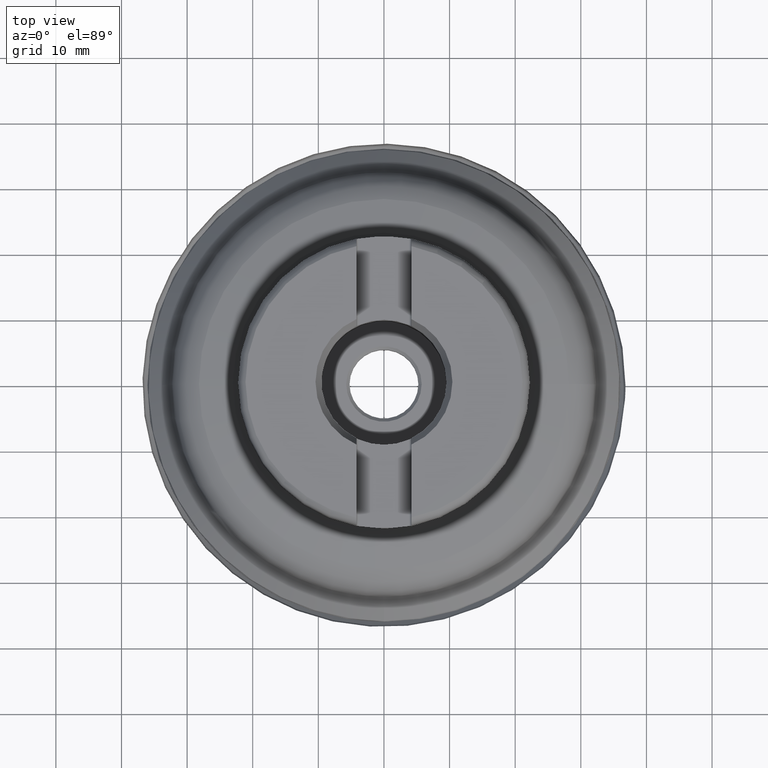
[diagram: clean part render]
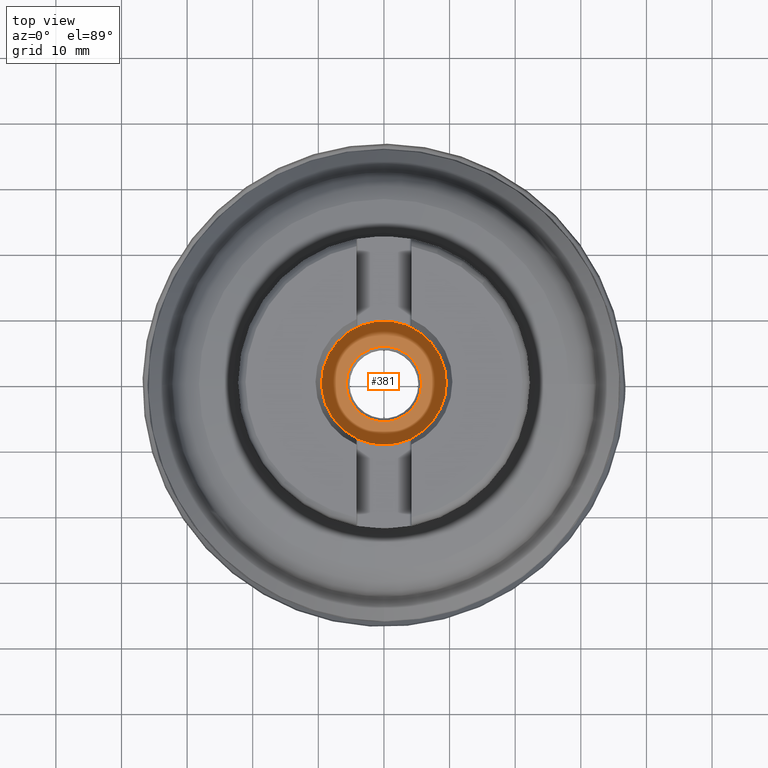
[diagram: same view with one face highlighted and labeled with its STEP entity id]
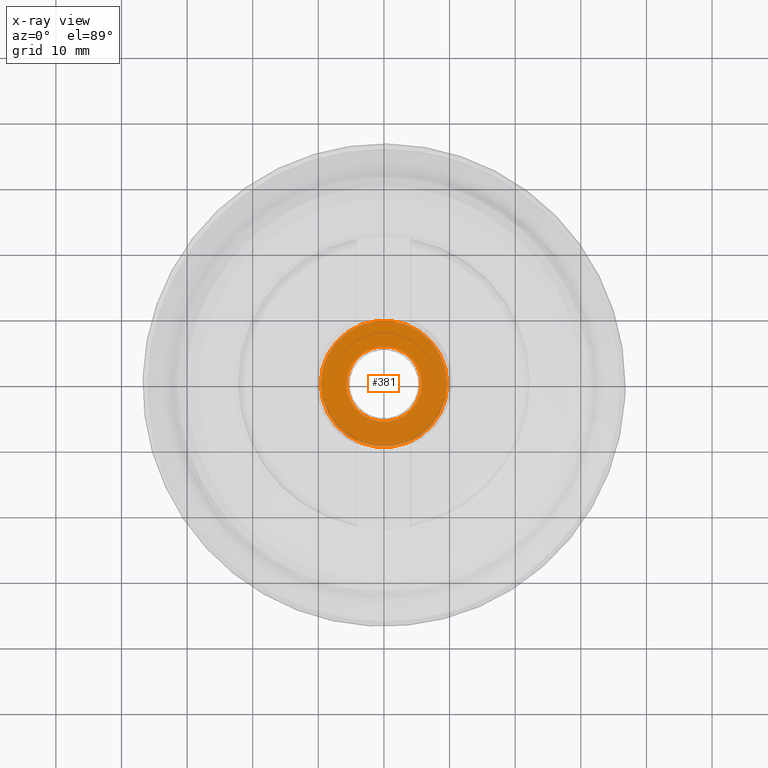
[diagram: x-ray of the same camera — body ghosted, the highlighted face saturated]
A machine part, top view. The second image highlights one B-rep face of the part: STEP entity #381.
The next image is the same camera in x-ray: the body ghosted, the highlighted face saturated — about 5% of this face is hidden behind the body in this view.
In plain terms, the highlighted planar face has unit normal (-0, -0, -1).
Its self-contained STEP definition (entity closure, byte-faithful):
#214=FACE_BOUND('',#492,.T.);
#215=FACE_BOUND('',#493,.T.);
#289=PLANE('',#1083);
#381=ADVANCED_FACE('',(#214,#215),#289,.F.);
#492=EDGE_LOOP('',(#731));
#493=EDGE_LOOP('',(#732));
#587=CIRCLE('',#1081,9.625);
#588=CIRCLE('',#1082,5.7451);
#731=ORIENTED_EDGE('',*,*,#955,.T.);
#732=ORIENTED_EDGE('',*,*,#956,.T.);
#859=VERTEX_POINT('',#1985);
#860=VERTEX_POINT('',#1987);
#955=EDGE_CURVE('',#859,#859,#587,.T.);
#956=EDGE_CURVE('',#860,#860,#588,.T.);
#1081=AXIS2_PLACEMENT_3D('',#1984,#1259,#1260);
#1082=AXIS2_PLACEMENT_3D('',#1986,#1261,#1262);
#1083=AXIS2_PLACEMENT_3D('',#1988,#1263,#1264);
#1259=DIRECTION('',(1.17145536458253E-15,1.33226762955019E-15,1.));
#1260=DIRECTION('',(1.,-3.1641356201817E-15,-1.08138606294658E-15));
#1261=DIRECTION('',(-1.17145536458253E-15,-1.33226762955019E-15,-1.));
#1262=DIRECTION('',(1.,-3.1641356201817E-15,-1.20779340723525E-15));
#1263=DIRECTION('',(-1.17145536458253E-15,-1.33226762955019E-15,-1.));
#1264=DIRECTION('',(1.,-3.1641356201817E-15,-1.17267306976032E-15));
#1984=CARTESIAN_POINT('',(2.4541989888004E-14,2.79110068390764E-14,20.95));
#1985=CARTESIAN_POINT('',(9.62500000000003,-2.54379850517239E-15,20.95));
#1986=CARTESIAN_POINT('',(2.4541989888004E-14,2.79110068390764E-14,20.95));
#1987=CARTESIAN_POINT('',(5.74510000000002,9.73273128757058E-15,20.95));
#1988=CARTESIAN_POINT('',(7.94578214658897E-15,-5.24509999999997,20.95));